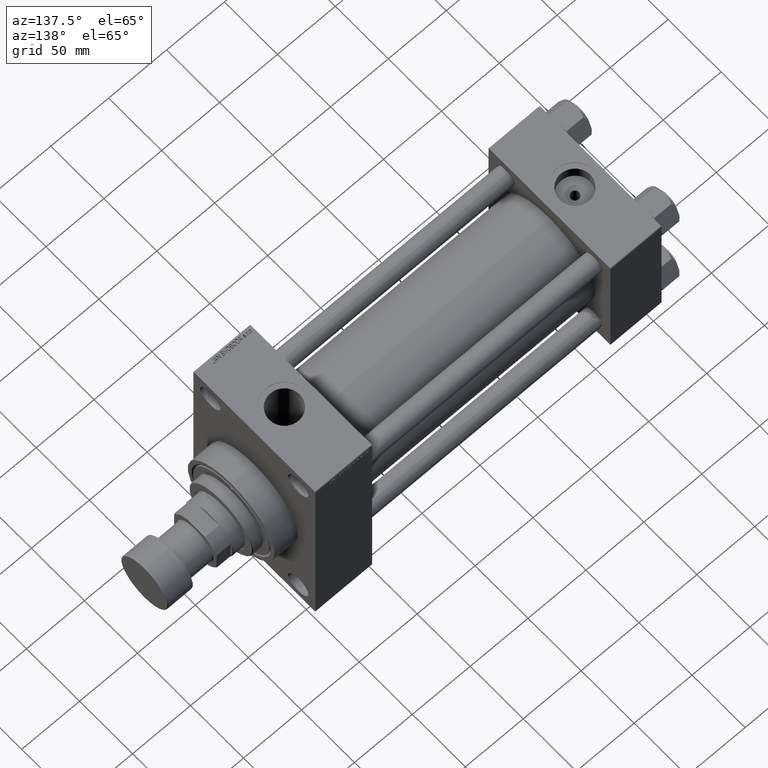
[diagram: clean part render]
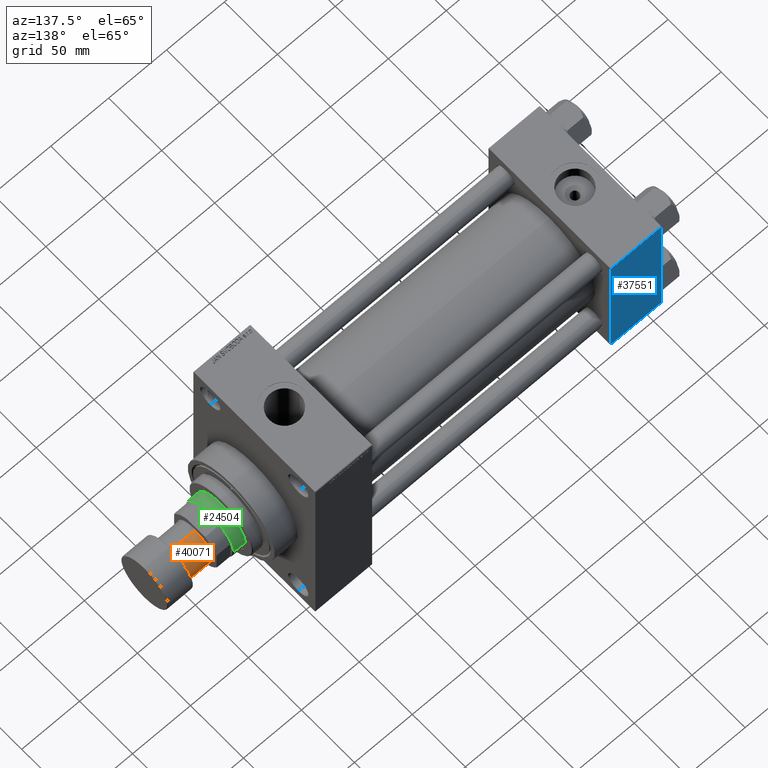
[diagram: same view with three faces highlighted in distinct colors, each labeled with its STEP entity id]
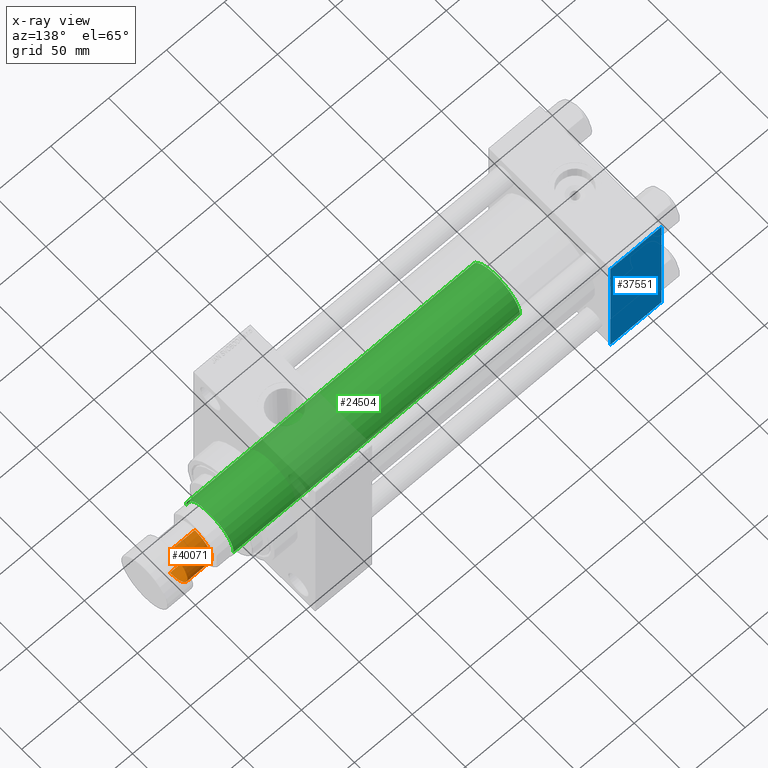
[diagram: x-ray of the same camera — body ghosted, the three highlighted faces saturated]
A machine part, auxiliary view with three faces highlighted in distinct colors.
The next image is the same camera in x-ray (body ghosted, the three faces saturated) — at least one of them is partly hidden behind the body in this view.
Their STEP definitions:

[orange] entity #40071 — the highlighted cylindrical surface (edge-blend (fillet) strip) has radius 16.5 mm, axis along (1, 0, 0).
#487 = DIRECTION ( 'NONE',  ( -1.000000000000000000, 0.000000000000000000, 0.000000000000000000 ) ) ;
#2313 = CIRCLE ( 'NONE', #19494, 16.50000000000000000 ) ;
#3591 = AXIS2_PLACEMENT_3D ( 'NONE', #4745, #22827, #23557 ) ;
#4408 = EDGE_CURVE ( 'NONE', #14622, #11256, #24282, .T. ) ;
#4465 = EDGE_CURVE ( 'NONE', #29946, #31687, #27476, .T. ) ;
#4745 = CARTESIAN_POINT ( 'NONE',  ( 0.000000000000000000, 0.000000000000000000, -22.00000000000000000 ) ) ;
#5067 = DIRECTION ( 'NONE',  ( -0.000000000000000000, -0.000000000000000000, 1.000000000000000000 ) ) ;
#6727 = CIRCLE ( 'NONE', #3591, 16.50000000000000000 ) ;
#10652 = AXIS2_PLACEMENT_3D ( 'NONE', #20700, #5067, #17275 ) ;
#11256 = VERTEX_POINT ( 'NONE', #11504 ) ;
#11504 = CARTESIAN_POINT ( 'NONE',  ( 16.50000000000000000, 0.000000000000000000, -22.00000000000000000 ) ) ;
#11776 = ORIENTED_EDGE ( 'NONE', *, *, #13570, .T. ) ;
#13570 = EDGE_CURVE ( 'NONE', #31687, #11256, #6727, .T. ) ;
#14622 = VERTEX_POINT ( 'NONE', #16570 ) ;
#16570 = CARTESIAN_POINT ( 'NONE',  ( 16.50000000000000000, 0.000000000000000000, -43.50000000000000000 ) ) ;
#17275 = DIRECTION ( 'NONE',  ( 1.000000000000000000, 0.000000000000000000, 0.000000000000000000 ) ) ;
#19494 = AXIS2_PLACEMENT_3D ( 'NONE', #33980, #34226, #487 ) ;
#20700 = CARTESIAN_POINT ( 'NONE',  ( 0.000000000000000000, 0.000000000000000000, -43.50000000000000000 ) ) ;
#21780 = ORIENTED_EDGE ( 'NONE', *, *, #4465, .T. ) ;
#22827 = DIRECTION ( 'NONE',  ( 0.000000000000000000, 0.000000000000000000, -1.000000000000000000 ) ) ;
#23557 = DIRECTION ( 'NONE',  ( -1.000000000000000000, 0.000000000000000000, 0.000000000000000000 ) ) ;
#24038 = DIRECTION ( 'NONE',  ( -0.000000000000000000, -0.000000000000000000, 1.000000000000000000 ) ) ;
#24282 = LINE ( 'NONE', #39156, #30467 ) ;
#24367 = FACE_OUTER_BOUND ( 'NONE', #36108, .T. ) ;
#24511 = DIRECTION ( 'NONE',  ( -0.000000000000000000, -0.000000000000000000, 1.000000000000000000 ) ) ;
#26021 = ORIENTED_EDGE ( 'NONE', *, *, #29716, .F. ) ;
#27476 = LINE ( 'NONE', #31621, #40308 ) ;
#29716 = EDGE_CURVE ( 'NONE', #29946, #14622, #2313, .T. ) ;
#29946 = VERTEX_POINT ( 'NONE', #37807 ) ;
#30467 = VECTOR ( 'NONE', #24038, 1000.000000000000000 ) ;
#31621 = CARTESIAN_POINT ( 'NONE',  ( -16.50000000000000000, 2.020667218593133100E-15, -43.50000000000000000 ) ) ;
#31687 = VERTEX_POINT ( 'NONE', #47193 ) ;
#33980 = CARTESIAN_POINT ( 'NONE',  ( 0.000000000000000000, 0.000000000000000000, -43.50000000000000000 ) ) ;
#34226 = DIRECTION ( 'NONE',  ( 0.000000000000000000, 0.000000000000000000, -1.000000000000000000 ) ) ;
#36108 = EDGE_LOOP ( 'NONE', ( #26021, #21780, #11776, #40876 ) ) ;
#37807 = CARTESIAN_POINT ( 'NONE',  ( -16.50000000000000000, 2.020667218593133100E-15, -43.50000000000000000 ) ) ;
#38526 = CYLINDRICAL_SURFACE ( 'NONE', #10652, 16.50000000000000000 ) ;
#39156 = CARTESIAN_POINT ( 'NONE',  ( 16.50000000000000000, 0.000000000000000000, -43.50000000000000000 ) ) ;
#40071 = ADVANCED_FACE ( 'NONE', ( #24367 ), #38526, .T. ) ;
#40308 = VECTOR ( 'NONE', #24511, 1000.000000000000000 ) ;
#40876 = ORIENTED_EDGE ( 'NONE', *, *, #4408, .F. ) ;
#47193 = CARTESIAN_POINT ( 'NONE',  ( -16.50000000000000000, 2.020667218593133100E-15, -22.00000000000000000 ) ) ;

[blue] entity #37551 — the highlighted planar face has unit normal (0, 1, 0).
#308 = VERTEX_POINT ( 'NONE', #39665 ) ;
#3086 = CARTESIAN_POINT ( 'NONE',  ( 44.00000000000000000, 57.49999999999999289, 57.00000000000003553 ) ) ;
#3676 = ORIENTED_EDGE ( 'NONE', *, *, #11822, .T. ) ;
#8611 = CARTESIAN_POINT ( 'NONE',  ( 0.000000000000000000, 57.49999999999999289, -57.00000000000000711 ) ) ;
#9145 = DIRECTION ( 'NONE',  ( 0.000000000000000000, 0.000000000000000000, -1.000000000000000000 ) ) ;
#10225 = EDGE_LOOP ( 'NONE', ( #33079, #23113, #10377, #3676 ) ) ;
#10377 = ORIENTED_EDGE ( 'NONE', *, *, #11829, .F. ) ;
#11822 = EDGE_CURVE ( 'NONE', #308, #30522, #30159, .T. ) ;
#11829 = EDGE_CURVE ( 'NONE', #308, #15104, #22809, .T. ) ;
#13296 = VERTEX_POINT ( 'NONE', #35857 ) ;
#15104 = VERTEX_POINT ( 'NONE', #8611 ) ;
#16317 = EDGE_CURVE ( 'NONE', #13296, #15104, #35006, .T. ) ;
#16710 = CARTESIAN_POINT ( 'NONE',  ( 44.00000000000000000, 57.49999999999999289, 57.50000000000000711 ) ) ;
#17565 = VECTOR ( 'NONE', #34056, 1000.000000000000000 ) ;
#18673 = CARTESIAN_POINT ( 'NONE',  ( 44.00000000000000000, 57.49999999999999289, 57.00000000000003553 ) ) ;
#19143 = CARTESIAN_POINT ( 'NONE',  ( 44.00000000000000000, 57.49999999999999289, -57.00000000000000711 ) ) ;
#22809 = LINE ( 'NONE', #37694, #17565 ) ;
#23113 = ORIENTED_EDGE ( 'NONE', *, *, #16317, .T. ) ;
#24284 = CARTESIAN_POINT ( 'NONE',  ( 44.00000000000000000, 57.49999999999999289, 57.50000000000000711 ) ) ;
#25431 = EDGE_CURVE ( 'NONE', #30522, #13296, #39158, .T. ) ;
#27722 = FACE_OUTER_BOUND ( 'NONE', #10225, .T. ) ;
#30159 = LINE ( 'NONE', #18673, #35501 ) ;
#30522 = VERTEX_POINT ( 'NONE', #3086 ) ;
#30879 = DIRECTION ( 'NONE',  ( -1.000000000000000000, 0.000000000000000000, 0.000000000000000000 ) ) ;
#32785 = DIRECTION ( 'NONE',  ( -0.000000000000000000, 1.000000000000000000, 0.000000000000000000 ) ) ;
#33079 = ORIENTED_EDGE ( 'NONE', *, *, #25431, .T. ) ;
#33586 = DIRECTION ( 'NONE',  ( 1.000000000000000000, 0.000000000000000000, 0.000000000000000000 ) ) ;
#34056 = DIRECTION ( 'NONE',  ( 0.000000000000000000, 0.000000000000000000, -1.000000000000000000 ) ) ;
#35006 = LINE ( 'NONE', #19143, #42515 ) ;
#35501 = VECTOR ( 'NONE', #33586, 1000.000000000000000 ) ;
#35857 = CARTESIAN_POINT ( 'NONE',  ( 44.00000000000000000, 57.49999999999999289, -57.00000000000000711 ) ) ;
#36416 = DIRECTION ( 'NONE',  ( 0.000000000000000000, -0.000000000000000000, 1.000000000000000000 ) ) ;
#37551 = ADVANCED_FACE ( 'NONE', ( #27722 ), #39832, .T. ) ;
#37694 = CARTESIAN_POINT ( 'NONE',  ( 0.000000000000000000, 57.49999999999999289, 57.50000000000000711 ) ) ;
#38973 = VECTOR ( 'NONE', #9145, 1000.000000000000000 ) ;
#39158 = LINE ( 'NONE', #24284, #38973 ) ;
#39665 = CARTESIAN_POINT ( 'NONE',  ( 0.000000000000000000, 57.49999999999999289, 57.00000000000003553 ) ) ;
#39832 = PLANE ( 'NONE',  #40197 ) ;
#40197 = AXIS2_PLACEMENT_3D ( 'NONE', #16710, #32785, #36416 ) ;
#42515 = VECTOR ( 'NONE', #30879, 1000.000000000000000 ) ;

[green] entity #24504 — the highlighted cylindrical surface (edge-blend (fillet) strip) has radius 22.5 mm, axis along (-1, 0, 0).
#454 = LINE ( 'NONE', #41248, #34903 ) ;
#2091 = CARTESIAN_POINT ( 'NONE',  ( 0.000000000000000000, 0.000000000000000000, 293.4999999999999432 ) ) ;
#2288 = VERTEX_POINT ( 'NONE', #10444 ) ;
#4107 = CYLINDRICAL_SURFACE ( 'NONE', #25706, 22.50000000000000355 ) ;
#5340 = EDGE_CURVE ( 'NONE', #47738, #16725, #42322, .T. ) ;
#5567 = DIRECTION ( 'NONE',  ( 1.000000000000000000, 0.000000000000000000, 0.000000000000000000 ) ) ;
#6064 = ORIENTED_EDGE ( 'NONE', *, *, #20845, .T. ) ;
#8005 = EDGE_CURVE ( 'NONE', #2288, #37387, #9666, .T. ) ;
#8966 = DIRECTION ( 'NONE',  ( 0.000000000000000000, 0.000000000000000000, -1.000000000000000000 ) ) ;
#9666 = CIRCLE ( 'NONE', #30750, 22.50000000000000355 ) ;
#9873 = EDGE_CURVE ( 'NONE', #47738, #37387, #28561, .T. ) ;
#9977 = CARTESIAN_POINT ( 'NONE',  ( 22.50000000000000355, 2.755455298081545172E-15, 294.0000000000000000 ) ) ;
#10444 = CARTESIAN_POINT ( 'NONE',  ( -22.50000000000000355, 0.000000000000000000, 46.00000000000000000 ) ) ;
#11151 = CARTESIAN_POINT ( 'NONE',  ( -22.50000000000000355, 0.000000000000000000, 293.4999999999999432 ) ) ;
#14396 = DIRECTION ( 'NONE',  ( -0.000000000000000000, -0.000000000000000000, -1.000000000000000000 ) ) ;
#16725 = VERTEX_POINT ( 'NONE', #11151 ) ;
#20845 = EDGE_CURVE ( 'NONE', #16725, #2288, #454, .T. ) ;
#23163 = DIRECTION ( 'NONE',  ( -0.000000000000000000, -0.000000000000000000, -1.000000000000000000 ) ) ;
#24504 = ADVANCED_FACE ( 'NONE', ( #26602 ), #4107, .T. ) ;
#24615 = DIRECTION ( 'NONE',  ( 0.000000000000000000, 0.000000000000000000, 1.000000000000000000 ) ) ;
#25067 = ORIENTED_EDGE ( 'NONE', *, *, #9873, .F. ) ;
#25304 = CARTESIAN_POINT ( 'NONE',  ( 22.50000000000000355, 2.755455298081545172E-15, 46.00000000000000000 ) ) ;
#25706 = AXIS2_PLACEMENT_3D ( 'NONE', #41472, #23163, #26837 ) ;
#26602 = FACE_OUTER_BOUND ( 'NONE', #45203, .T. ) ;
#26837 = DIRECTION ( 'NONE',  ( -1.000000000000000000, 0.000000000000000000, 0.000000000000000000 ) ) ;
#28561 = LINE ( 'NONE', #9977, #44797 ) ;
#30750 = AXIS2_PLACEMENT_3D ( 'NONE', #43401, #24615, #5567 ) ;
#34206 = CARTESIAN_POINT ( 'NONE',  ( 22.50000000000000355, 2.755455298081545172E-15, 293.4999999999999432 ) ) ;
#34903 = VECTOR ( 'NONE', #14396, 1000.000000000000000 ) ;
#37387 = VERTEX_POINT ( 'NONE', #25304 ) ;
#39249 = ORIENTED_EDGE ( 'NONE', *, *, #5340, .T. ) ;
#39763 = DIRECTION ( 'NONE',  ( -0.000000000000000000, -0.000000000000000000, -1.000000000000000000 ) ) ;
#41248 = CARTESIAN_POINT ( 'NONE',  ( -22.50000000000000355, 0.000000000000000000, 294.0000000000000000 ) ) ;
#41472 = CARTESIAN_POINT ( 'NONE',  ( 0.000000000000000000, 0.000000000000000000, 294.0000000000000000 ) ) ;
#42286 = AXIS2_PLACEMENT_3D ( 'NONE', #2091, #8966, #46807 ) ;
#42322 = CIRCLE ( 'NONE', #42286, 22.50000000000000355 ) ;
#43401 = CARTESIAN_POINT ( 'NONE',  ( 0.000000000000000000, 0.000000000000000000, 46.00000000000000000 ) ) ;
#43575 = ORIENTED_EDGE ( 'NONE', *, *, #8005, .T. ) ;
#44797 = VECTOR ( 'NONE', #39763, 1000.000000000000000 ) ;
#45203 = EDGE_LOOP ( 'NONE', ( #25067, #39249, #6064, #43575 ) ) ;
#46807 = DIRECTION ( 'NONE',  ( 1.000000000000000000, 0.000000000000000000, 0.000000000000000000 ) ) ;
#47738 = VERTEX_POINT ( 'NONE', #34206 ) ;